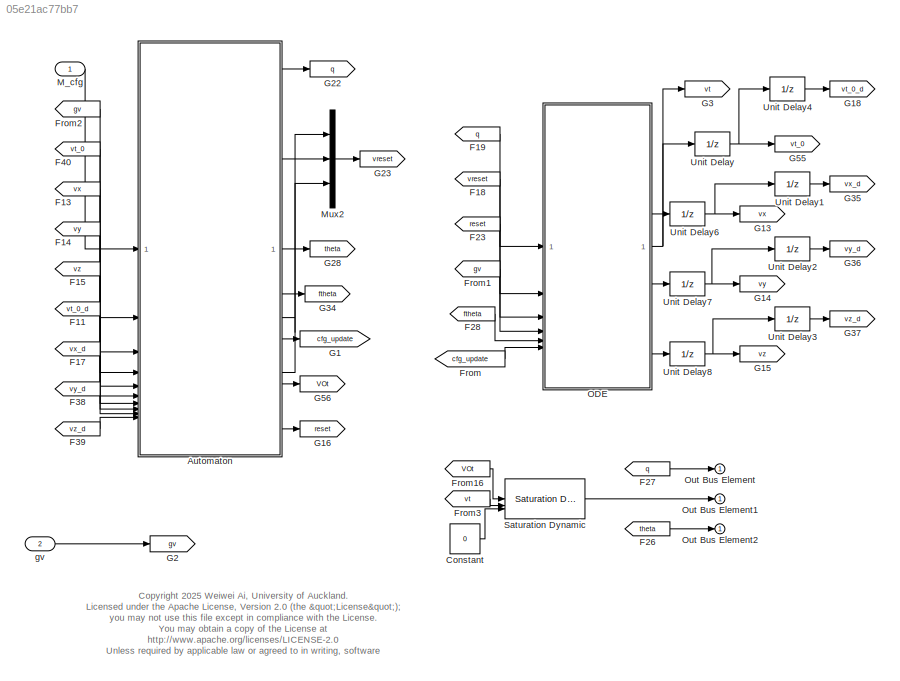
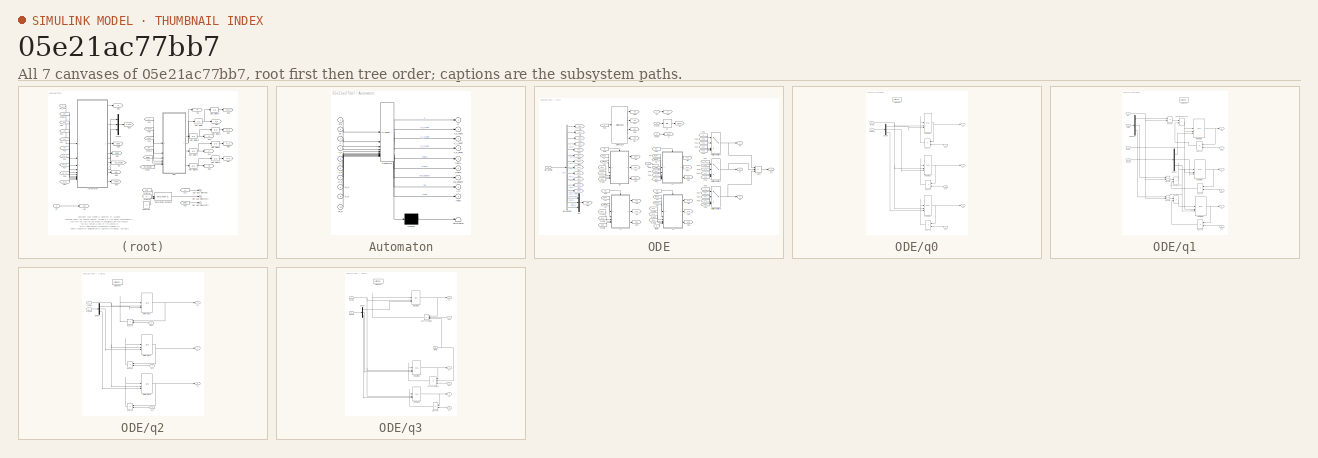
[diagram: thumbnail index - all 7 canvases of the model, root first then tree order]
MODEL slx_05e21ac77bb7
KIND model
CONFIG AbsTol = auto
CONFIG EnableMultiTasking = off
CONFIG FixedStep = 0.5e-3
CONFIG MaxStep = auto
CONFIG MinStep = auto
CONFIG RelTol = 1e-3
CONFIG SampleTimeConstraint = Unconstrained
CONFIG SolverName = ode1
CONFIG StartTime = 0.0
CONFIG StopTime = 10.0
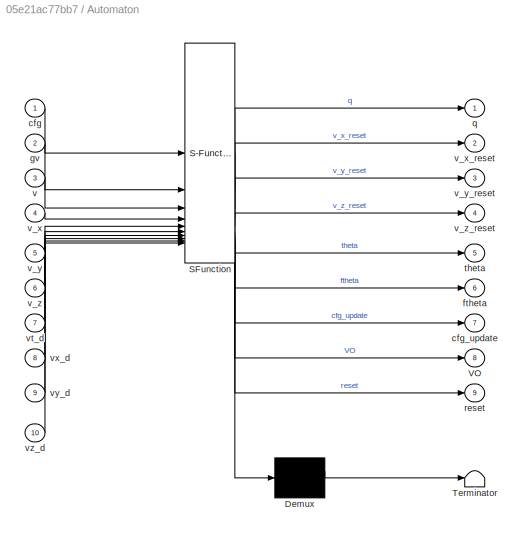
BLOCK [SubSystem] Automaton
  ErrorFcn = Stateflow.Translate.translate
  PermitHierarchicalResolution = ExplicitOnly
  SFBlockType = Chart
  TreatAsAtomicUnit = on
BLOCK [Demux] Automaton/ Demux 
  Outputs = 1
BLOCK [S-Function] Automaton/ SFunction 
  EnableBusSupport = on
  FunctionName = sf_sfun
  PortCounts = [10 10]
  SFcnIsStateOwnerBlock = off
  SFunctionDeploymentMode = off
  Tag = Stateflow S-Function 2
BLOCK [Terminator] Automaton/ Terminator 
BLOCK [Outport] Automaton/VO
  Port = 8
BLOCK [Inport] Automaton/cfg
BLOCK [Outport] Automaton/cfg_update
  Port = 7
BLOCK [Outport] Automaton/ftheta
  Port = 6
BLOCK [Inport] Automaton/gv
  Port = 2
BLOCK [Outport] Automaton/q
BLOCK [Outport] Automaton/reset
  Port = 9
BLOCK [Outport] Automaton/theta
  Port = 5
BLOCK [Inport] Automaton/v
  Port = 3
BLOCK [Inport] Automaton/v_x
  Port = 4
BLOCK [Outport] Automaton/v_x_reset
  Port = 2
BLOCK [Inport] Automaton/v_y
  Port = 5
BLOCK [Outport] Automaton/v_y_reset
  Port = 3
BLOCK [Inport] Automaton/v_z
  Port = 6
BLOCK [Outport] Automaton/v_z_reset
  Port = 4
BLOCK [Inport] Automaton/vt_d
  Port = 7
BLOCK [Inport] Automaton/vx_d
  Port = 8
BLOCK [Inport] Automaton/vy_d
  Port = 9
BLOCK [Inport] Automaton/vz_d
  Port = 10
BLOCK [Constant] Constant
  Value = 0
BLOCK [From] F11
  GotoTag = vt_0_d
BLOCK [From] F13
  GotoTag = vx
BLOCK [From] F14
  GotoTag = vy
BLOCK [From] F15
  GotoTag = vz
BLOCK [From] F17
  GotoTag = vx_d
BLOCK [From] F18
  GotoTag = vreset
  NameLocation = top
BLOCK [From] F19
  GotoTag = q
BLOCK [From] F23
  GotoTag = reset
BLOCK [From] F26
  GotoTag = theta
BLOCK [From] F27
  GotoTag = q
BLOCK [From] F28
  GotoTag = ftheta
BLOCK [From] F38
  GotoTag = vy_d
BLOCK [From] F39
  GotoTag = vz_d
BLOCK [From] F40
  GotoTag = vt_0
BLOCK [From] From
  GotoTag = cfg_update
BLOCK [From] From1
  GotoTag = gv
BLOCK [From] From16
  GotoTag = VOt
BLOCK [From] From2
  GotoTag = gv
BLOCK [From] From3
  GotoTag = vt
BLOCK [Goto] G1
  GotoTag = cfg_update
BLOCK [Goto] G13
  GotoTag = vx
BLOCK [Goto] G14
  GotoTag = vy
BLOCK [Goto] G15
  GotoTag = vz
BLOCK [Goto] G16
  GotoTag = reset
BLOCK [Goto] G18
  GotoTag = vt_0_d
BLOCK [Goto] G2
  GotoTag = gv
BLOCK [Goto] G22
  GotoTag = q
BLOCK [Goto] G23
  GotoTag = vreset
BLOCK [Goto] G28
  GotoTag = theta
BLOCK [Goto] G3
  GotoTag = vt
BLOCK [Goto] G34
  GotoTag = ftheta
BLOCK [Goto] G35
  GotoTag = vx_d
BLOCK [Goto] G36
  GotoTag = vy_d
BLOCK [Goto] G37
  GotoTag = vz_d
BLOCK [Goto] G55
  GotoTag = vt_0
BLOCK [Goto] G56
  GotoTag = VOt
BLOCK [Inport] M_cfg
  BusOutputAsStruct = on
  OutDataTypeStr = Bus: Config_M
  SamplingMode = Sample based
  SignalType = real
BLOCK [Mux] Mux2
  DisplayOption = bar
  Inputs = 3
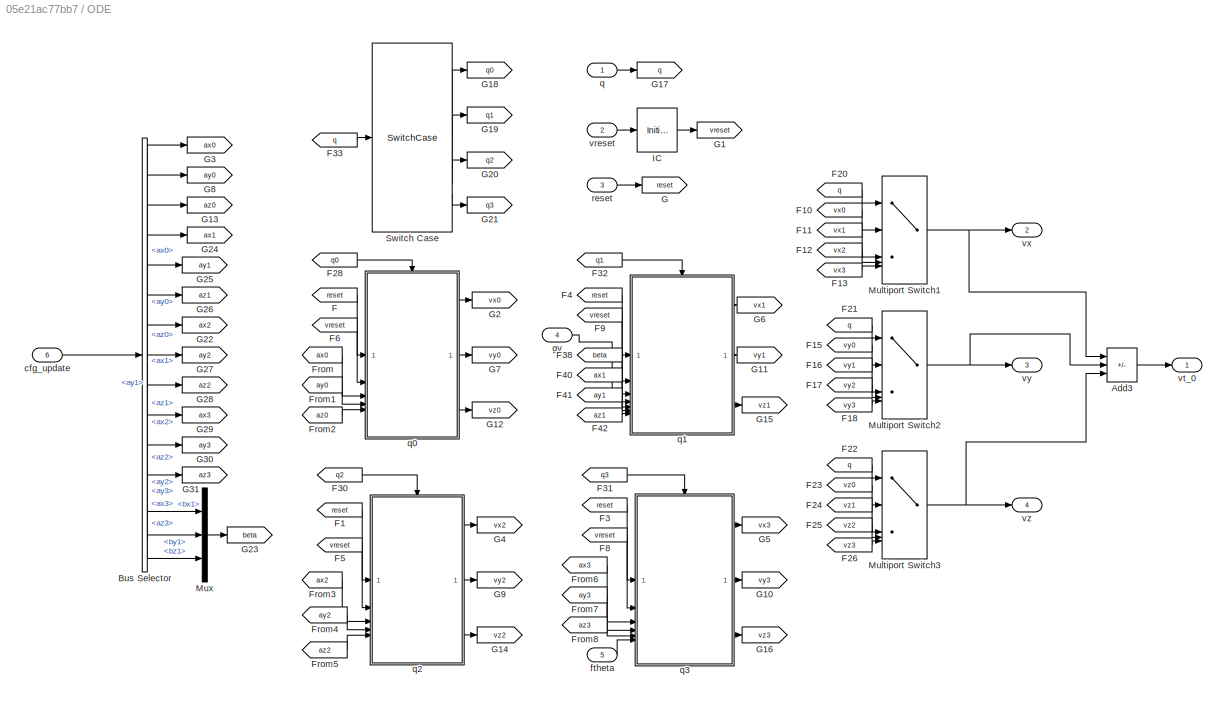
BLOCK [SubSystem] ODE
BLOCK [Sum] ODE/Add3
  IconShape = rectangular
  Inputs = +-+
BLOCK [BusSelector] ODE/Bus Selector
  OutputSignals = ax0,ay0,az0,ax1,ay1,az1,ax2,ay2,az2,ax3,ay3,az3,bx1,by1,bz1
BLOCK [From] ODE/F
  GotoTag = reset
BLOCK [From] ODE/F1
  GotoTag = reset
BLOCK [From] ODE/F10
  GotoTag = vx0
BLOCK [From] ODE/F11
  GotoTag = vx1
BLOCK [From] ODE/F12
  GotoTag = vx2
BLOCK [From] ODE/F13
  GotoTag = vx3
BLOCK [From] ODE/F15
  GotoTag = vy0
BLOCK [From] ODE/F16
  GotoTag = vy1
BLOCK [From] ODE/F17
  GotoTag = vy2
BLOCK [From] ODE/F18
  GotoTag = vy3
BLOCK [From] ODE/F20
  GotoTag = q
BLOCK [From] ODE/F21
  GotoTag = q
BLOCK [From] ODE/F22
  GotoTag = q
BLOCK [From] ODE/F23
  GotoTag = vz0
BLOCK [From] ODE/F24
  GotoTag = vz1
BLOCK [From] ODE/F25
  GotoTag = vz2
BLOCK [From] ODE/F26
  GotoTag = vz3
BLOCK [From] ODE/F28
  GotoTag = q0
BLOCK [From] ODE/F3
  GotoTag = reset
BLOCK [From] ODE/F30
  GotoTag = q2
BLOCK [From] ODE/F31
  GotoTag = q3
BLOCK [From] ODE/F32
  GotoTag = q1
BLOCK [From] ODE/F33
  GotoTag = q
BLOCK [From] ODE/F38
  GotoTag = beta
BLOCK [From] ODE/F4
  GotoTag = reset
BLOCK [From] ODE/F40
  GotoTag = ax1
BLOCK [From] ODE/F41
  GotoTag = ay1
BLOCK [From] ODE/F42
  GotoTag = az1
BLOCK [From] ODE/F5
  GotoTag = vreset
BLOCK [From] ODE/F6
  GotoTag = vreset
BLOCK [From] ODE/F8
  GotoTag = vreset
BLOCK [From] ODE/F9
  GotoTag = vreset
BLOCK [From] ODE/From
  GotoTag = ax0
BLOCK [From] ODE/From1
  GotoTag = ay0
BLOCK [From] ODE/From2
  GotoTag = az0
BLOCK [From] ODE/From3
  GotoTag = ax2
BLOCK [From] ODE/From4
  GotoTag = ay2
BLOCK [From] ODE/From5
  GotoTag = az2
BLOCK [From] ODE/From6
  GotoTag = ax3
BLOCK [From] ODE/From7
  GotoTag = ay3
BLOCK [From] ODE/From8
  GotoTag = az3
BLOCK [Goto] ODE/G
  GotoTag = reset
BLOCK [Goto] ODE/G1
  GotoTag = vreset
BLOCK [Goto] ODE/G10
  GotoTag = vy3
BLOCK [Goto] ODE/G11
  GotoTag = vy1
BLOCK [Goto] ODE/G12
  GotoTag = vz0
BLOCK [Goto] ODE/G13
  GotoTag = az0
BLOCK [Goto] ODE/G14
  GotoTag = vz2
BLOCK [Goto] ODE/G15
  GotoTag = vz1
BLOCK [Goto] ODE/G16
  GotoTag = vz3
BLOCK [Goto] ODE/G17
  GotoTag = q
BLOCK [Goto] ODE/G18
  GotoTag = q0
BLOCK [Goto] ODE/G19
  GotoTag = q1
BLOCK [Goto] ODE/G2
  GotoTag = vx0
BLOCK [Goto] ODE/G20
  GotoTag = q2
BLOCK [Goto] ODE/G21
  GotoTag = q3
BLOCK [Goto] ODE/G22
  GotoTag = ax2
BLOCK [Goto] ODE/G23
  GotoTag = beta
BLOCK [Goto] ODE/G24
  GotoTag = ax1
BLOCK [Goto] ODE/G25
  GotoTag = ay1
BLOCK [Goto] ODE/G26
  GotoTag = az1
BLOCK [Goto] ODE/G27
  GotoTag = ay2
BLOCK [Goto] ODE/G28
  GotoTag = az2
BLOCK [Goto] ODE/G29
  GotoTag = ax3
BLOCK [Goto] ODE/G3
  GotoTag = ax0
BLOCK [Goto] ODE/G30
  GotoTag = ay3
BLOCK [Goto] ODE/G31
  GotoTag = az3
BLOCK [Goto] ODE/G4
  GotoTag = vx2
BLOCK [Goto] ODE/G5
  GotoTag = vx3
BLOCK [Goto] ODE/G6
  GotoTag = vx1
BLOCK [Goto] ODE/G7
  GotoTag = vy0
BLOCK [Goto] ODE/G8
  GotoTag = ay0
BLOCK [Goto] ODE/G9
  GotoTag = vy2
BLOCK [InitialCondition] ODE/IC
  Value = 0
BLOCK [MultiPortSwitch] ODE/Multiport Switch1
  DataPortOrder = Zero-based contiguous
  InputSameDT = off
  Inputs = 4
  SaturateOnIntegerOverflow = off
  zeroidx = on
BLOCK [MultiPortSwitch] ODE/Multiport Switch2
  DataPortOrder = Zero-based contiguous
  InputSameDT = off
  Inputs = 4
  SaturateOnIntegerOverflow = off
  zeroidx = on
BLOCK [MultiPortSwitch] ODE/Multiport Switch3
  DataPortOrder = Zero-based contiguous
  InputSameDT = off
  Inputs = 4
  SaturateOnIntegerOverflow = off
  zeroidx = on
BLOCK [Mux] ODE/Mux
  DisplayOption = bar
  Inputs = 3
BLOCK [SwitchCase] ODE/Switch Case
  CaseConditions = {0,1,2,3}
  ShowDefaultCase = off
BLOCK [Inport] ODE/cfg_update
  OutDataTypeStr = Bus: Config_M
  Port = 6
BLOCK [Inport] ODE/ftheta
  Port = 5
BLOCK [Inport] ODE/gv
  Port = 4
BLOCK [Inport] ODE/q
BLOCK [SubSystem] ODE/q0
  TreatAsAtomicUnit = on
BLOCK [ActionPort] ODE/q0/Action Port
  ActionPortLabel = case [ 0 ]:
  InitializeStates = reset
BLOCK [Demux] ODE/q0/Demux
  Outputs = 3
BLOCK [Integrator] ODE/q0/Integrator1
  ExternalReset = either
  InitialCondition = 20
  InitialConditionSource = external
BLOCK [Integrator] ODE/q0/Integrator2
  ExternalReset = either
  InitialCondition = 20
  InitialConditionSource = external
BLOCK [Integrator] ODE/q0/Integrator3
  ExternalReset = either
  InitialCondition = 20
  InitialConditionSource = external
BLOCK [Inport] ODE/q0/ax0
  Port = 3
BLOCK [Product] ODE/q0/ax0*vx
BLOCK [Inport] ODE/q0/ay0
  Port = 4
BLOCK [Product] ODE/q0/ay0*vy
BLOCK [Inport] ODE/q0/az0
  Port = 5
BLOCK [Product] ODE/q0/az0*vz
BLOCK [Inport] ODE/q0/reset0
BLOCK [Inport] ODE/q0/vreset0
  Port = 2
BLOCK [Outport] ODE/q0/vx
BLOCK [Outport] ODE/q0/vy
  Port = 2
BLOCK [Outport] ODE/q0/vz
  Port = 3
BLOCK [SubSystem] ODE/q1
  TreatAsAtomicUnit = on
BLOCK [ActionPort] ODE/q1/Action Port
  ActionPortLabel = case [ 1 ]:
  InitializeStates = reset
BLOCK [Demux] ODE/q1/Demux
  Outputs = 3
BLOCK [Demux] ODE/q1/Demux1
  Outputs = 3
BLOCK [Integrator] ODE/q1/Integrator1
  ExternalReset = either
  InitialCondition = 1
  InitialConditionSource = external
BLOCK [Integrator] ODE/q1/Integrator2
  ExternalReset = either
  InitialCondition = 1
  InitialConditionSource = external
BLOCK [Integrator] ODE/q1/Integrator3
  ExternalReset = either
  InitialCondition = 1
  InitialConditionSource = external
BLOCK [Inport] ODE/q1/ax1
  Port = 5
BLOCK [Product] ODE/q1/ax1*vx
BLOCK [Inport] ODE/q1/ay1
  Port = 6
BLOCK [Product] ODE/q1/ay1*vy
BLOCK [Inport] ODE/q1/az1
  Port = 7
BLOCK [Product] ODE/q1/az1*vz
BLOCK [Inport] ODE/q1/beta
  Port = 4
BLOCK [Product] ODE/q1/bx*gv
BLOCK [Sum] ODE/q1/bx*gv+ax1*vx
  IconShape = rectangular
BLOCK [Product] ODE/q1/by*gv
BLOCK [Sum] ODE/q1/by*gv+ay1*vy
  IconShape = rectangular
BLOCK [Product] ODE/q1/bz*gv
BLOCK [Sum] ODE/q1/bz*gv+az1*vz
  IconShape = rectangular
BLOCK [Inport] ODE/q1/gv
  Port = 3
BLOCK [Inport] ODE/q1/reset1
BLOCK [Inport] ODE/q1/vreset1
  Port = 2
BLOCK [Outport] ODE/q1/vx
BLOCK [Outport] ODE/q1/vy
  Port = 2
BLOCK [Outport] ODE/q1/vz
  Port = 3
BLOCK [SubSystem] ODE/q2
  TreatAsAtomicUnit = on
BLOCK [ActionPort] ODE/q2/Action Port
  ActionPortLabel = case [ 2 ]:
  InitializeStates = reset
BLOCK [Demux] ODE/q2/Demux
  Outputs = 3
BLOCK [Integrator] ODE/q2/Integrator1
  ExternalReset = either
  InitialCondition = 20
  InitialConditionSource = external
BLOCK [Integrator] ODE/q2/Integrator2
  ExternalReset = either
  InitialCondition = 20
  InitialConditionSource = external
BLOCK [Integrator] ODE/q2/Integrator3
  ExternalReset = either
  InitialCondition = 20
  InitialConditionSource = external
BLOCK [Inport] ODE/q2/ax2
  Port = 3
BLOCK [Product] ODE/q2/ax2*vx
BLOCK [Inport] ODE/q2/ay2
  Port = 4
BLOCK [Product] ODE/q2/ay2*vy
BLOCK [Inport] ODE/q2/az2
  Port = 5
BLOCK [Product] ODE/q2/az2*vz
BLOCK [Inport] ODE/q2/reset2
BLOCK [Inport] ODE/q2/vreset2
  Port = 2
BLOCK [Outport] ODE/q2/vx
BLOCK [Outport] ODE/q2/vy
  Port = 2
BLOCK [Outport] ODE/q2/vz
  Port = 3
BLOCK [SubSystem] ODE/q3
  TreatAsAtomicUnit = on
BLOCK [ActionPort] ODE/q3/Action Port
  ActionPortLabel = case [ 3 ]:
  InitializeStates = reset
BLOCK [Demux] ODE/q3/Demux
  Outputs = 3
BLOCK [Integrator] ODE/q3/Integrator1
  ExternalReset = either
  InitialCondition = 133
  InitialConditionSource = external
BLOCK [Integrator] ODE/q3/Integrator2
  ExternalReset = either
  InitialCondition = 133
  InitialConditionSource = external
BLOCK [Integrator] ODE/q3/Integrator3
  ExternalReset = either
  InitialCondition = 133
  InitialConditionSource = external
BLOCK [Inport] ODE/q3/ax3
  Port = 3
BLOCK [Product] ODE/q3/ax3*vx*lamda
  Inputs = 3
BLOCK [Inport] ODE/q3/ay3
  Port = 4
BLOCK [Product] ODE/q3/ay3*vy*lamda
  Inputs = 3
BLOCK [Inport] ODE/q3/az3
  Port = 5
BLOCK [Product] ODE/q3/az3*vz*
BLOCK [Inport] ODE/q3/ftheta
  Port = 6
BLOCK [Inport] ODE/q3/reset3
BLOCK [Inport] ODE/q3/vreset3
  Port = 2
BLOCK [Outport] ODE/q3/vx
BLOCK [Outport] ODE/q3/vy
  Port = 2
BLOCK [Outport] ODE/q3/vz
  Port = 3
BLOCK [Inport] ODE/reset
  Port = 3
BLOCK [Inport] ODE/vreset
  Port = 2
BLOCK [Outport] ODE/vt_0
BLOCK [Outport] ODE/vx
  Port = 2
BLOCK [Outport] ODE/vy
  Port = 3
BLOCK [Outport] ODE/vz
  Port = 4
BLOCK [Outport] Out Bus Element
BLOCK [Outport] Out Bus Element1
BLOCK [Outport] Out Bus Element2
BLOCK [Reference] Saturation Dynamic  REF=simulink/Discontinuities/Saturation
Dynamic
  SourceBlock = simulink/Discontinuities/Saturation\nDynamic
  SourceType = Saturation Dynamic
BLOCK [UnitDelay] Unit Delay
  HasFrameUpgradeWarning = on
  SampleTime = -1
BLOCK [UnitDelay] Unit Delay1
  HasFrameUpgradeWarning = on
  SampleTime = -1
BLOCK [UnitDelay] Unit Delay2
  HasFrameUpgradeWarning = on
  SampleTime = -1
BLOCK [UnitDelay] Unit Delay3
  HasFrameUpgradeWarning = on
  SampleTime = -1
BLOCK [UnitDelay] Unit Delay4
  HasFrameUpgradeWarning = on
  SampleTime = -1
BLOCK [UnitDelay] Unit Delay6
  HasFrameUpgradeWarning = on
  SampleTime = -1
BLOCK [UnitDelay] Unit Delay7
  HasFrameUpgradeWarning = on
  SampleTime = -1
BLOCK [UnitDelay] Unit Delay8
  HasFrameUpgradeWarning = on
  SampleTime = -1
BLOCK [Inport] gv
  OutDataTypeStr = double
  Port = 2
  PortDimensions = 1
  SamplingMode = Sample based
  SignalType = real
ANNOTATION (root): <copyright redacted>
LINE Automaton:1 -> G22:1
LINE Automaton:2 -> Mux2:1
LINE Automaton:3 -> Mux2:2
LINE Automaton:4 -> Mux2:3
LINE Automaton:5 -> G28:1
LINE Automaton:6 -> G34:1
LINE Automaton:7 -> G1:1
LINE Automaton:8 -> G56:1
LINE Automaton:9 -> G16:1
LINE Constant:1 -> Saturation Dynamic:3
LINE F11:1 -> Automaton:7
LINE F13:1 -> Automaton:4
LINE F14:1 -> Automaton:5
LINE F15:1 -> Automaton:6
LINE F17:1 -> Automaton:8
LINE F18:1 -> ODE:2
LINE F19:1 -> ODE:1
LINE F23:1 -> ODE:3
LINE F26:1 -> Out Bus Element2:1
LINE F27:1 -> Out Bus Element:1
LINE F28:1 -> ODE:5
LINE F38:1 -> Automaton:9
LINE F39:1 -> Automaton:10
LINE F40:1 -> Automaton:3
LINE From16:1 -> Saturation Dynamic:1
LINE From1:1 -> ODE:4
LINE From2:1 -> Automaton:2
LINE From3:1 -> Saturation Dynamic:2
LINE From:1 -> ODE:6
LINE M_cfg:1 -> Automaton:1
LINE Mux2:1 -> G23:1
LINE ODE/Add3:1 -> ODE/vt_0:1
LINE ODE/Bus Selector:1 -> ODE/G3:1
LINE ODE/Bus Selector:10 -> ODE/G29:1
LINE ODE/Bus Selector:11 -> ODE/G30:1
LINE ODE/Bus Selector:12 -> ODE/G31:1
LINE ODE/Bus Selector:13 -> ODE/Mux:1
LINE ODE/Bus Selector:14 -> ODE/Mux:2
LINE ODE/Bus Selector:15 -> ODE/Mux:3
LINE ODE/Bus Selector:2 -> ODE/G8:1
LINE ODE/Bus Selector:3 -> ODE/G13:1
LINE ODE/Bus Selector:4 -> ODE/G24:1
LINE ODE/Bus Selector:5 -> ODE/G25:1
LINE ODE/Bus Selector:6 -> ODE/G26:1
LINE ODE/Bus Selector:7 -> ODE/G22:1
LINE ODE/Bus Selector:8 -> ODE/G27:1
LINE ODE/Bus Selector:9 -> ODE/G28:1
LINE ODE/F10:1 -> ODE/Multiport Switch1:2
LINE ODE/F11:1 -> ODE/Multiport Switch1:3
LINE ODE/F12:1 -> ODE/Multiport Switch1:4
LINE ODE/F13:1 -> ODE/Multiport Switch1:5
LINE ODE/F15:1 -> ODE/Multiport Switch2:2
LINE ODE/F16:1 -> ODE/Multiport Switch2:3
LINE ODE/F17:1 -> ODE/Multiport Switch2:4
LINE ODE/F18:1 -> ODE/Multiport Switch2:5
LINE ODE/F1:1 -> ODE/q2:1
LINE ODE/F20:1 -> ODE/Multiport Switch1:1
LINE ODE/F21:1 -> ODE/Multiport Switch2:1
LINE ODE/F22:1 -> ODE/Multiport Switch3:1
LINE ODE/F23:1 -> ODE/Multiport Switch3:2
LINE ODE/F24:1 -> ODE/Multiport Switch3:3
LINE ODE/F25:1 -> ODE/Multiport Switch3:4
LINE ODE/F26:1 -> ODE/Multiport Switch3:5
LINE ODE/F28:1 -> ODE/q0:ifaction
LINE ODE/F30:1 -> ODE/q2:ifaction
LINE ODE/F31:1 -> ODE/q3:ifaction
LINE ODE/F32:1 -> ODE/q1:ifaction
LINE ODE/F33:1 -> ODE/Switch Case:1
LINE ODE/F38:1 -> ODE/q1:4
LINE ODE/F3:1 -> ODE/q3:1
LINE ODE/F40:1 -> ODE/q1:5
LINE ODE/F41:1 -> ODE/q1:6
LINE ODE/F42:1 -> ODE/q1:7
LINE ODE/F4:1 -> ODE/q1:1
LINE ODE/F5:1 -> ODE/q2:2
LINE ODE/F6:1 -> ODE/q0:2
LINE ODE/F8:1 -> ODE/q3:2
LINE ODE/F9:1 -> ODE/q1:2
LINE ODE/F:1 -> ODE/q0:1
LINE ODE/From1:1 -> ODE/q0:4
LINE ODE/From2:1 -> ODE/q0:5
LINE ODE/From3:1 -> ODE/q2:3
LINE ODE/From4:1 -> ODE/q2:4
LINE ODE/From5:1 -> ODE/q2:5
LINE ODE/From6:1 -> ODE/q3:3
LINE ODE/From7:1 -> ODE/q3:4
LINE ODE/From8:1 -> ODE/q3:5
LINE ODE/From:1 -> ODE/q0:3
LINE ODE/IC:1 -> ODE/G1:1
NET ODE/Multiport Switch1:1 -> ODE/Add3:1, ODE/vx:1
NET ODE/Multiport Switch2:1 -> ODE/Add3:2, ODE/vy:1
NET ODE/Multiport Switch3:1 -> ODE/Add3:3, ODE/vz:1
LINE ODE/Mux:1 -> ODE/G23:1
LINE ODE/Switch Case:1 -> ODE/G18:1
LINE ODE/Switch Case:2 -> ODE/G19:1
LINE ODE/Switch Case:3 -> ODE/G20:1
LINE ODE/Switch Case:4 -> ODE/G21:1
LINE ODE/cfg_update:1 -> ODE/Bus Selector:1
LINE ODE/ftheta:1 -> ODE/q3:6
LINE ODE/gv:1 -> ODE/q1:3
LINE ODE/q0/Demux:1 -> ODE/q0/Integrator1:3
LINE ODE/q0/Demux:2 -> ODE/q0/Integrator2:3
LINE ODE/q0/Demux:3 -> ODE/q0/Integrator3:3
NET ODE/q0/Integrator1:1 -> ODE/q0/ax0*vx:1, ODE/q0/vx:1
NET ODE/q0/Integrator2:1 -> ODE/q0/ay0*vy:1, ODE/q0/vy:1
NET ODE/q0/Integrator3:1 -> ODE/q0/az0*vz:1, ODE/q0/vz:1
LINE ODE/q0/ax0*vx:1 -> ODE/q0/Integrator1:1
LINE ODE/q0/ax0:1 -> ODE/q0/ax0*vx:2
LINE ODE/q0/ay0*vy:1 -> ODE/q0/Integrator2:1
LINE ODE/q0/ay0:1 -> ODE/q0/ay0*vy:2
LINE ODE/q0/az0*vz:1 -> ODE/q0/Integrator3:1
LINE ODE/q0/az0:1 -> ODE/q0/az0*vz:2
NET ODE/q0/reset0:1 -> ODE/q0/Integrator1:2, ODE/q0/Integrator2:2, ODE/q0/Integrator3:2
LINE ODE/q0/vreset0:1 -> ODE/q0/Demux:1
LINE ODE/q0:1 -> ODE/G2:1
LINE ODE/q0:2 -> ODE/G7:1
LINE ODE/q0:3 -> ODE/G12:1
LINE ODE/q1/Demux1:1 -> ODE/q1/bx*gv:1
LINE ODE/q1/Demux1:2 -> ODE/q1/by*gv:1
LINE ODE/q1/Demux1:3 -> ODE/q1/bz*gv:1
LINE ODE/q1/Demux:1 -> ODE/q1/Integrator1:3
LINE ODE/q1/Demux:2 -> ODE/q1/Integrator2:3
LINE ODE/q1/Demux:3 -> ODE/q1/Integrator3:3
NET ODE/q1/Integrator1:1 -> ODE/q1/ax1*vx:1, ODE/q1/vx:1
NET ODE/q1/Integrator2:1 -> ODE/q1/ay1*vy:1, ODE/q1/vy:1
NET ODE/q1/Integrator3:1 -> ODE/q1/az1*vz:1, ODE/q1/vz:1
LINE ODE/q1/ax1*vx:1 -> ODE/q1/bx*gv+ax1*vx:2
LINE ODE/q1/ax1:1 -> ODE/q1/ax1*vx:2
LINE ODE/q1/ay1*vy:1 -> ODE/q1/by*gv+ay1*vy:2
LINE ODE/q1/ay1:1 -> ODE/q1/ay1*vy:2
LINE ODE/q1/az1*vz:1 -> ODE/q1/bz*gv+az1*vz:2
LINE ODE/q1/az1:1 -> ODE/q1/az1*vz:2
LINE ODE/q1/beta:1 -> ODE/q1/Demux1:1
LINE ODE/q1/bx*gv+ax1*vx:1 -> ODE/q1/Integrator1:1
LINE ODE/q1/bx*gv:1 -> ODE/q1/bx*gv+ax1*vx:1
LINE ODE/q1/by*gv+ay1*vy:1 -> ODE/q1/Integrator2:1
LINE ODE/q1/by*gv:1 -> ODE/q1/by*gv+ay1*vy:1
LINE ODE/q1/bz*gv+az1*vz:1 -> ODE/q1/Integrator3:1
LINE ODE/q1/bz*gv:1 -> ODE/q1/bz*gv+az1*vz:1
NET ODE/q1/gv:1 -> ODE/q1/bx*gv:2, ODE/q1/by*gv:2, ODE/q1/bz*gv:2
NET ODE/q1/reset1:1 -> ODE/q1/Integrator1:2, ODE/q1/Integrator2:2, ODE/q1/Integrator3:2
LINE ODE/q1/vreset1:1 -> ODE/q1/Demux:1
LINE ODE/q1:1 -> ODE/G6:1
LINE ODE/q1:2 -> ODE/G11:1
LINE ODE/q1:3 -> ODE/G15:1
LINE ODE/q2/Demux:1 -> ODE/q2/Integrator1:3
LINE ODE/q2/Demux:2 -> ODE/q2/Integrator2:3
LINE ODE/q2/Demux:3 -> ODE/q2/Integrator3:3
NET ODE/q2/Integrator1:1 -> ODE/q2/ax2*vx:1, ODE/q2/vx:1
NET ODE/q2/Integrator2:1 -> ODE/q2/ay2*vy:1, ODE/q2/vy:1
NET ODE/q2/Integrator3:1 -> ODE/q2/az2*vz:1, ODE/q2/vz:1
LINE ODE/q2/ax2*vx:1 -> ODE/q2/Integrator1:1
LINE ODE/q2/ax2:1 -> ODE/q2/ax2*vx:2
LINE ODE/q2/ay2*vy:1 -> ODE/q2/Integrator2:1
LINE ODE/q2/ay2:1 -> ODE/q2/ay2*vy:2
LINE ODE/q2/az2*vz:1 -> ODE/q2/Integrator3:1
LINE ODE/q2/az2:1 -> ODE/q2/az2*vz:2
NET ODE/q2/reset2:1 -> ODE/q2/Integrator1:2, ODE/q2/Integrator2:2, ODE/q2/Integrator3:2
LINE ODE/q2/vreset2:1 -> ODE/q2/Demux:1
LINE ODE/q2:1 -> ODE/G4:1
LINE ODE/q2:2 -> ODE/G9:1
LINE ODE/q2:3 -> ODE/G14:1
LINE ODE/q3/Demux:1 -> ODE/q3/Integrator1:3
LINE ODE/q3/Demux:2 -> ODE/q3/Integrator2:3
LINE ODE/q3/Demux:3 -> ODE/q3/Integrator3:3
NET ODE/q3/Integrator1:1 -> ODE/q3/ax3*vx*lamda:1, ODE/q3/vx:1
NET ODE/q3/Integrator2:1 -> ODE/q3/ay3*vy*lamda:1, ODE/q3/vy:1
NET ODE/q3/Integrator3:1 -> ODE/q3/az3*vz*:1, ODE/q3/vz:1
LINE ODE/q3/ax3*vx*lamda:1 -> ODE/q3/Integrator1:1
LINE ODE/q3/ax3:1 -> ODE/q3/ax3*vx*lamda:2
LINE ODE/q3/ay3*vy*lamda:1 -> ODE/q3/Integrator2:1
LINE ODE/q3/ay3:1 -> ODE/q3/ay3*vy*lamda:3
LINE ODE/q3/az3*vz*:1 -> ODE/q3/Integrator3:1
LINE ODE/q3/az3:1 -> ODE/q3/az3*vz*:2
NET ODE/q3/ftheta:1 -> ODE/q3/ax3*vx*lamda:3, ODE/q3/ay3*vy*lamda:2
NET ODE/q3/reset3:1 -> ODE/q3/Integrator1:2, ODE/q3/Integrator2:2, ODE/q3/Integrator3:2
LINE ODE/q3/vreset3:1 -> ODE/q3/Demux:1
LINE ODE/q3:1 -> ODE/G5:1
LINE ODE/q3:2 -> ODE/G10:1
LINE ODE/q3:3 -> ODE/G16:1
LINE ODE/q:1 -> ODE/G17:1
LINE ODE/reset:1 -> ODE/G:1
LINE ODE/vreset:1 -> ODE/IC:1
NET ODE:1 -> G3:1, Unit Delay:1
LINE ODE:2 -> Unit Delay6:1
LINE ODE:3 -> Unit Delay7:1
LINE ODE:4 -> Unit Delay8:1
LINE Saturation Dynamic:1 -> Out Bus Element1:1
LINE Unit Delay1:1 -> G35:1
LINE Unit Delay2:1 -> G36:1
LINE Unit Delay3:1 -> G37:1
LINE Unit Delay4:1 -> G18:1
NET Unit Delay6:1 -> G13:1, Unit Delay1:1
NET Unit Delay7:1 -> G14:1, Unit Delay2:1
NET Unit Delay8:1 -> G15:1, Unit Delay3:1
NET Unit Delay:1 -> G55:1, Unit Delay4:1
LINE gv:1 -> G2:1
note: NET lines group one-source signal fan-out (src -> all destinations, sorted); 1:1 wires keep LINE
CHART Automaton states=7 transitions=8
  STATE_LABEL 'Node_M'
  STATE_LABEL '[thetaout,fthetatout]  = vtheta(vnin,VRi,ain,bin,cin,din,ein)'
  STATE_LABEL 'SCRIPT:\nfunction [thetaout,fthetatout]  = vtheta(vnin,VRi,ain,bin,cin,din,ein)\n%Rate dependent factor\nthetaout=vnin/VRi;\nif thetaout<ein\n    fthetatout=ain*exp(bin*thetaout)+cin*exp(-din*thetaout);\nelse\n    fthetatout=ain*exp(bin*ein)+cin*exp(-din*ein);\n    thetaout=ein;\nend\n\nend\n\n\n'
  STATE_LABEL 'Resting_FR\nen: q=0;\n VT=cfg_update.VT;\n'
  STATE_LABEL 'Stimulated\nen: q=1;\n'
  STATE_LABEL 'Plateau_ER\nen:q=3;\n'
  STATE_LABEL 'Upstroke\nen: q=2;\n'
  STATE_LABEL '{cfg_update=cfg;}'
  STATE_LABEL '[(gv>VT)&&v<=VT]{...\nVO_max=cfg_update.VO;\nVR=cfg_update.VR;\nv_x_reset=v_x; \nv_y_reset=v_y;\nv_z_reset=v_z;\nvno=v;VO=VO_max-80.1*sqrt(vno/VR);\n[theta,ftheta]=vtheta(vno,VR,cfg_update.a,cfg_update.b,cfg_update.c,cfg_update.d,cfg_update.e);\nreset;}'
  STATE_LABEL ' [(gv<=0)&&v<VT]{...\nv_x_reset=v_x; \nv_y_reset=v_y;\nv_z_reset=v_z; \nreset;}'
  STATE_LABEL '[v>=VT]{...\nv_x_reset=(v_x-vx_d)*(VT-vt_d)/(v-vt_d)+vx_d; \nv_y_reset=(v_y-vy_d)*(VT-vt_d)/(v-vt_d)+vy_d; \nv_z_reset=(v_z-vz_d)*(VT-vt_d)/(v-vt_d)+vz_d; \nreset;}'
  STATE_LABEL '[v<=VR]{...\nv_x_reset=(v_x-vx_d)*(VR-vt_d)/(v-vt_d)+vx_d; \nv_y_reset=(v_y-vy_d)*(VR-vt_d)/(v-vt_d)+vy_d; \nv_z_reset=(v_z-vz_d)*(VR-vt_d)/(v-vt_d)+vz_d;\ncfg_update=cfg;\nreset;}'
  STATE_LABEL '[v>=VO]{...\nv_x_reset=(v_x-vx_d)*(VO-vt_d)/(v-vt_d)+vx_d; \nv_y_reset=(v_y-vy_d)*(VO-vt_d)/(v-vt_d)+vy_d; \nv_z_reset=(v_z-vz_d)*(VO-vt_d)/(v-vt_d)+vz_d;\nreset;}'
  STATE_LABEL '[thetaout,fthetatout]  = vtheta(vnin,VRi,ain,bin,cin,din,ein)'
  STATE_LABEL 'SCRIPT:\nfunction [thetaout,fthetatout]  = vtheta(vnin,VRi,ain,bin,cin,din,ein)\n%Rate dependent factor\nthetaout=vnin/VRi;\nif thetaout<ein\n    fthetatout=ain*exp(bin*thetaout)+cin*exp(-din*thetaout);\nelse\n    fthetatout=ain*exp(bin*ein)+cin*exp(-din*ein);\n    thetaout=ein;\nend\n\nend\n\n\n'
  STATE_LABEL 'Resting_FR\nen: q=0;\n VT=cfg_update.VT;\n'
  STATE_LABEL 'Stimulated\nen: q=1;\n'
  STATE_LABEL 'Plateau_ER\nen:q=3;\n'
  STATE_LABEL 'Upstroke\nen: q=2;\n'
  STATE_LABEL 'Init'
CHART  states=0 transitions=0
